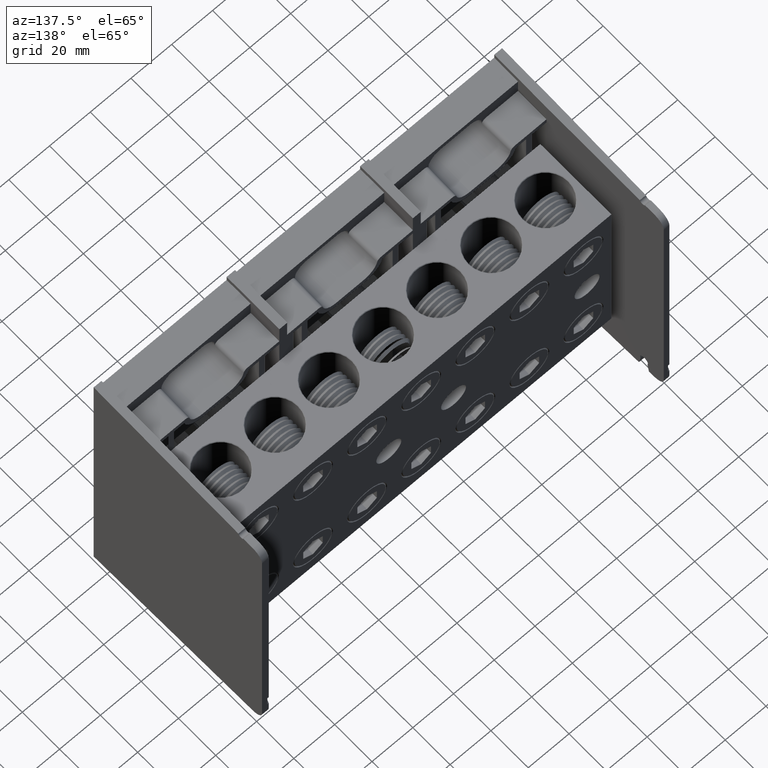
[diagram: clean part render]
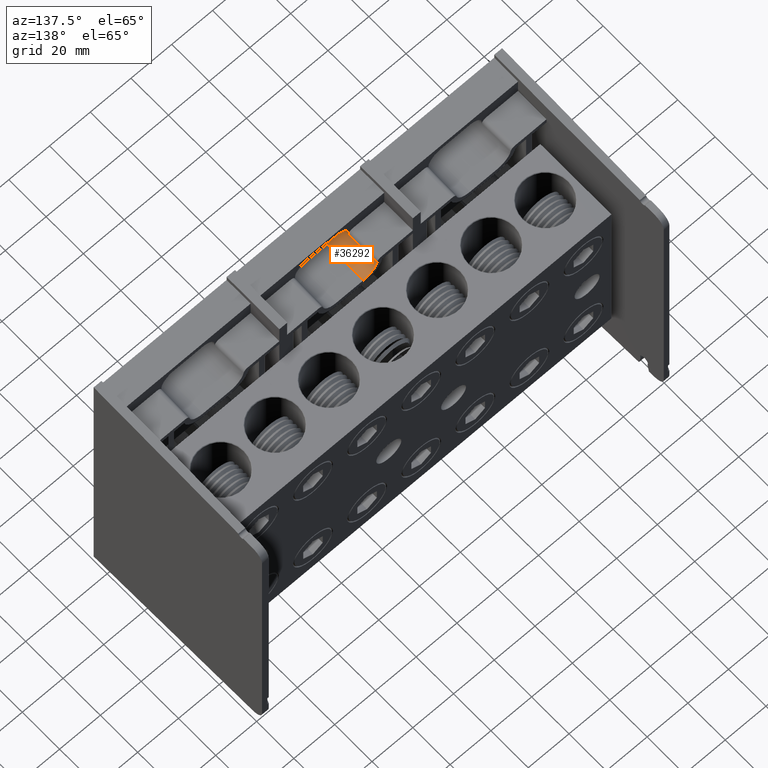
[diagram: same view with one face highlighted and labeled with its STEP entity id]
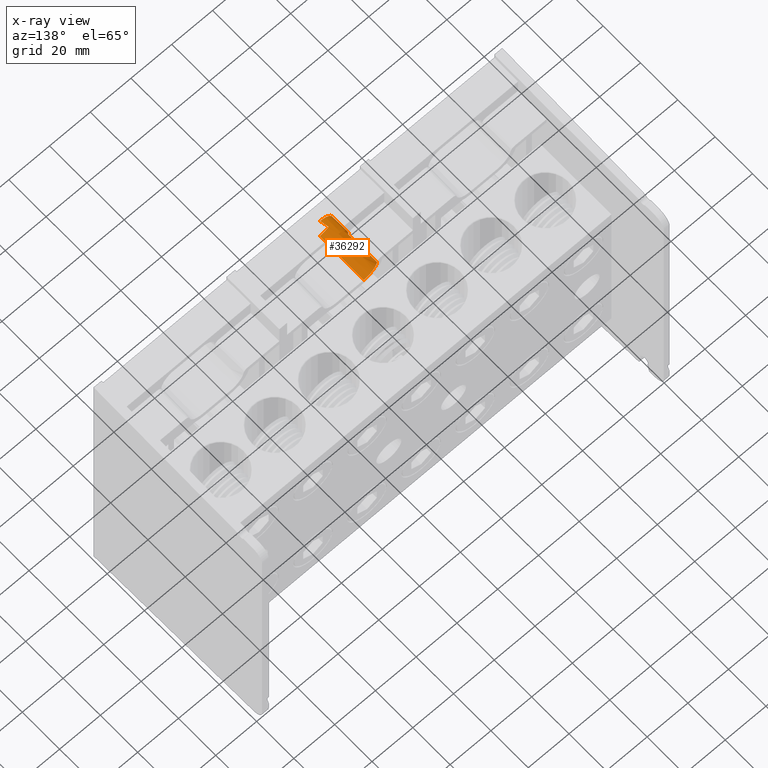
[diagram: x-ray of the same camera — body ghosted, the highlighted face saturated]
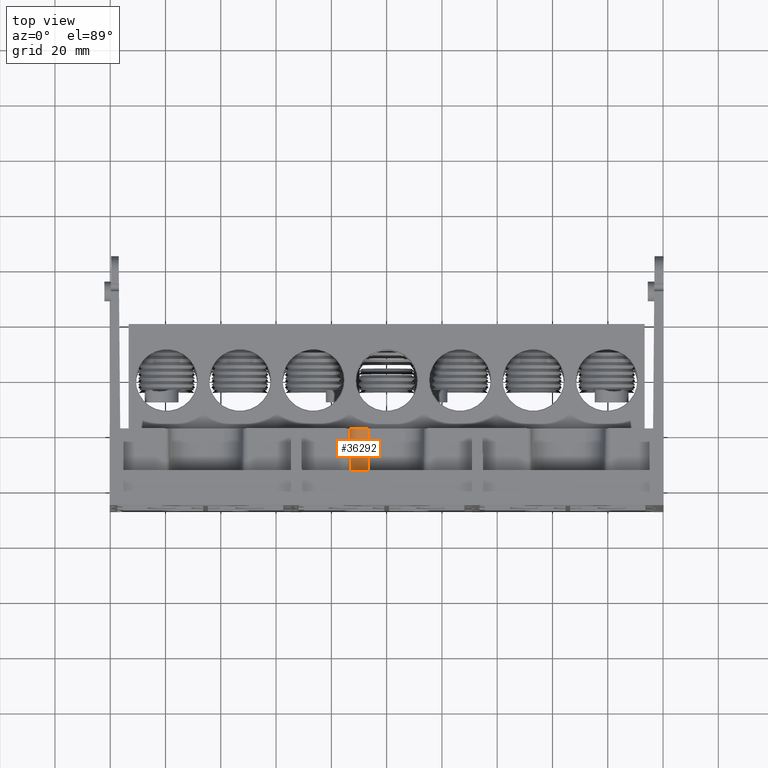
[diagram: same view with one face highlighted and labeled with its STEP entity id]
A machine part, auxiliary view. The second image highlights one B-rep face of the part: STEP entity #36292.
The next image is the same camera in x-ray: the body ghosted, the highlighted face saturated — about 0% of this face is hidden behind the body in this view.
A second angle (top view) of the same face is appended — the face is thin or edge-on in the first view.
In plain terms, the highlighted conical surface has half-angle 1 deg.
Its self-contained STEP definition (entity closure, byte-faithful):
#87 = VECTOR ( 'NONE', #9838, 39.37007874015748100 ) ;
#1035 = ORIENTED_EDGE ( 'NONE', *, *, #30384, .F. ) ;
#1208 = VERTEX_POINT ( 'NONE', #44328 ) ;
#1773 = ORIENTED_EDGE ( 'NONE', *, *, #37388, .T. ) ;
#2151 = ORIENTED_EDGE ( 'NONE', *, *, #46895, .F. ) ;
#2549 = CARTESIAN_POINT ( 'NONE',  ( -0.3135595911206919800, -1.350000000000000500, 2.625000000000000000 ) ) ;
#3008 = CARTESIAN_POINT ( 'NONE',  ( -0.2657180452224381400, -1.671421430012667700, 2.625000000000000000 ) ) ;
#3511 = AXIS2_PLACEMENT_3D ( 'NONE', #30952, #7277, #34903 ) ;
#4096 = EDGE_CURVE ( 'NONE', #10851, #47034, #38561, .T. ) ;
#4816 = EDGE_LOOP ( 'NONE', ( #2151, #1035, #1773, #37264, #18453, #9469 ) ) ;
#6678 = CARTESIAN_POINT ( 'NONE',  ( -0.2617632142782299100, -1.675000000000164600, 2.625000000000000000 ) ) ;
#7025 = CARTESIAN_POINT ( 'NONE',  ( -0.2692854782070100400, -1.665468091576024900, 2.625000000000000400 ) ) ;
#7277 = DIRECTION ( 'NONE',  ( -0.0000000000000000000, 1.000000000000000000, 0.0000000000000000000 ) ) ;
#9469 = ORIENTED_EDGE ( 'NONE', *, *, #38737, .T. ) ;
#9838 = DIRECTION ( 'NONE',  ( 2.383866075515316500E-018, 0.9998476951563912700, -0.01745240643728355300 ) ) ;
#10851 = VERTEX_POINT ( 'NONE', #40497 ) ;
#10999 = CARTESIAN_POINT ( 'NONE',  ( -0.2742298008369452600, -1.652477813852111200, 2.625000000000000900 ) ) ;
#12076 = DIRECTION ( 'NONE',  ( 0.0000000000000000000, 1.000000000000000000, 0.0000000000000000000 ) ) ;
#12100 = CONICAL_SURFACE ( 'NONE', #39168, 0.2500000000000000600, 0.01745329251994333400 ) ;
#12420 = DIRECTION ( 'NONE',  ( 0.0000000000000000000, 0.0000000000000000000, 1.000000000000000000 ) ) ;
#12601 = CARTESIAN_POINT ( 'NONE',  ( -0.2599999999999999000, -0.7500000000000005600, 2.108854064941398500 ) ) ;
#14996 = CARTESIAN_POINT ( 'NONE',  ( -0.2810539387244150900, -1.625556316869509300, 2.625000000000000000 ) ) ;
#16199 = CARTESIAN_POINT ( 'NONE',  ( -0.2599999999999999500, -1.675000000000000500, 2.375000000000000000 ) ) ;
#17147 = CARTESIAN_POINT ( 'NONE',  ( -0.2599999999999999500, -1.675000000000000900, 2.375000000000000000 ) ) ;
#18003 = DIRECTION ( 'NONE',  ( 0.0000000000000000000, -1.000000000000000000, -0.0000000000000000000 ) ) ;
#18276 = FACE_OUTER_BOUND ( 'NONE', #4816, .T. ) ;
#18453 = ORIENTED_EDGE ( 'NONE', *, *, #24430, .T. ) ;
#18964 = CARTESIAN_POINT ( 'NONE',  ( -0.2905537352604648000, -1.570847541113779200, 2.625000000000000000 ) ) ;
#21131 = DIRECTION ( 'NONE',  ( 0.0000000000000000000, 0.0000000000000000000, 1.000000000000000000 ) ) ;
#21320 = CIRCLE ( 'NONE', #3511, 0.2556728961016709300 ) ;
#22715 = CARTESIAN_POINT ( 'NONE',  ( -0.2599999999999999500, -1.675000000000000900, 2.625000000000000000 ) ) ;
#22880 = VECTOR ( 'NONE', #42524, 39.37007874015748100 ) ;
#22904 = CARTESIAN_POINT ( 'NONE',  ( -0.3038914371459646700, -1.460616095761865500, 2.625000000000000000 ) ) ;
#24015 = VERTEX_POINT ( 'NONE', #2549 ) ;
#24430 = EDGE_CURVE ( 'NONE', #10851, #32791, #43931, .T. ) ;
#26698 = CARTESIAN_POINT ( 'NONE',  ( -0.2633009985002892600, -1.673918803073142000, 2.625000000000000000 ) ) ;
#26856 = CARTESIAN_POINT ( 'NONE',  ( -0.3135595911206919800, -1.350000000000000500, 2.625000000000000000 ) ) ;
#30058 = B_SPLINE_CURVE_WITH_KNOTS ( 'NONE', 3,
 ( #22715, #6678, #26698, #3008, #30689, #7025, #34640, #10999, #38651, #14996, #42600, #18964, #46611, #22904, #50544, #26856 ),
 .UNSPECIFIED., .F., .F.,
 ( 4, 2, 2, 2, 2, 2, 2, 4 ),
 ( 0.02640776727867060300, 0.02654098857404383800, 0.02667420986941707700, 0.02694065246016355200, 0.02747353764165650200, 0.02853930800464238000, 0.03067084873061413900, 0.03493393018255767900 ),
 .UNSPECIFIED. ) ;
#30384 = EDGE_CURVE ( 'NONE', #33553, #1208, #33024, .T. ) ;
#30689 = CARTESIAN_POINT ( 'NONE',  ( -0.2666851847513174200, -1.669966116823485200, 2.625000000000000000 ) ) ;
#30952 = CARTESIAN_POINT ( 'NONE',  ( -0.2599999999999999500, -1.350000000000000500, 2.375000000000000000 ) ) ;
#32791 = VERTEX_POINT ( 'NONE', #35713 ) ;
#33024 = CIRCLE ( 'NONE', #49348, 0.2500000000000000600 ) ;
#33553 = VERTEX_POINT ( 'NONE', #36699 ) ;
#34402 = CARTESIAN_POINT ( 'NONE',  ( -0.5074358296526968500, -1.675000000000000500, 2.339285714285714900 ) ) ;
#34640 = CARTESIAN_POINT ( 'NONE',  ( -0.2706227822623153400, -1.662241352170044100, 2.625000000000000400 ) ) ;
#34903 = DIRECTION ( 'NONE',  ( 0.0000000000000000000, 0.0000000000000000000, 1.000000000000000000 ) ) ;
#35713 = CARTESIAN_POINT ( 'NONE',  ( -0.5130505406664985800, -1.350000000000000500, 2.338475300556904600 ) ) ;
#36292 = ADVANCED_FACE ( 'NONE', ( #18276 ), #12100, .F. ) ;
#36699 = CARTESIAN_POINT ( 'NONE',  ( -0.2599999999999999000, -1.675000000000000900, 2.125000000000000000 ) ) ;
#37264 = ORIENTED_EDGE ( 'NONE', *, *, #4096, .F. ) ;
#37300 = CARTESIAN_POINT ( 'NONE',  ( -0.2599999999999999000, -1.675000000000000500, 2.125000000000000000 ) ) ;
#37388 = EDGE_CURVE ( 'NONE', #33553, #47034, #43408, .T. ) ;
#38561 = CIRCLE ( 'NONE', #51174, 0.2661459350586012400 ) ;
#38651 = CARTESIAN_POINT ( 'NONE',  ( -0.2760660221304049300, -1.645769949517805800, 2.625000000000000400 ) ) ;
#38737 = EDGE_CURVE ( 'NONE', #32791, #24015, #21320, .T. ) ;
#39168 = AXIS2_PLACEMENT_3D ( 'NONE', #16199, #12076, #12420 ) ;
#40497 = CARTESIAN_POINT ( 'NONE',  ( -0.5234161609996711400, -0.7500000000000005600, 2.336979152134485800 ) ) ;
#41652 = CARTESIAN_POINT ( 'NONE',  ( -0.2599999999999999500, -0.7500000000000005600, 2.375000000000000000 ) ) ;
#42524 = DIRECTION ( 'NONE',  ( 0.01727340266498129200, -0.9998476951563912700, 0.002493200919611895400 ) ) ;
#42600 = CARTESIAN_POINT ( 'NONE',  ( -0.2836050032656440800, -1.611903668323032800, 2.624999999999999600 ) ) ;
#43408 = LINE ( 'NONE', #37300, #87 ) ;
#43931 = LINE ( 'NONE', #34402, #22880 ) ;
#44328 = CARTESIAN_POINT ( 'NONE',  ( -0.2599999999999999500, -1.675000000000000900, 2.625000000000000000 ) ) ;
#44822 = DIRECTION ( 'NONE',  ( 0.0000000000000000000, 1.000000000000000000, 0.0000000000000000000 ) ) ;
#45654 = DIRECTION ( 'NONE',  ( 8.981414628519155500E-016, 0.0000000000000000000, 1.000000000000000000 ) ) ;
#46611 = CARTESIAN_POINT ( 'NONE',  ( -0.2941312161024978700, -1.543312929975136200, 2.625000000000000000 ) ) ;
#46895 = EDGE_CURVE ( 'NONE', #1208, #24015, #30058, .T. ) ;
#47034 = VERTEX_POINT ( 'NONE', #12601 ) ;
#49348 = AXIS2_PLACEMENT_3D ( 'NONE', #17147, #44822, #21131 ) ;
#50544 = CARTESIAN_POINT ( 'NONE',  ( -0.3089499923540026700, -1.405321534519245400, 2.625000000000000000 ) ) ;
#51174 = AXIS2_PLACEMENT_3D ( 'NONE', #41652, #18003, #45654 ) ;